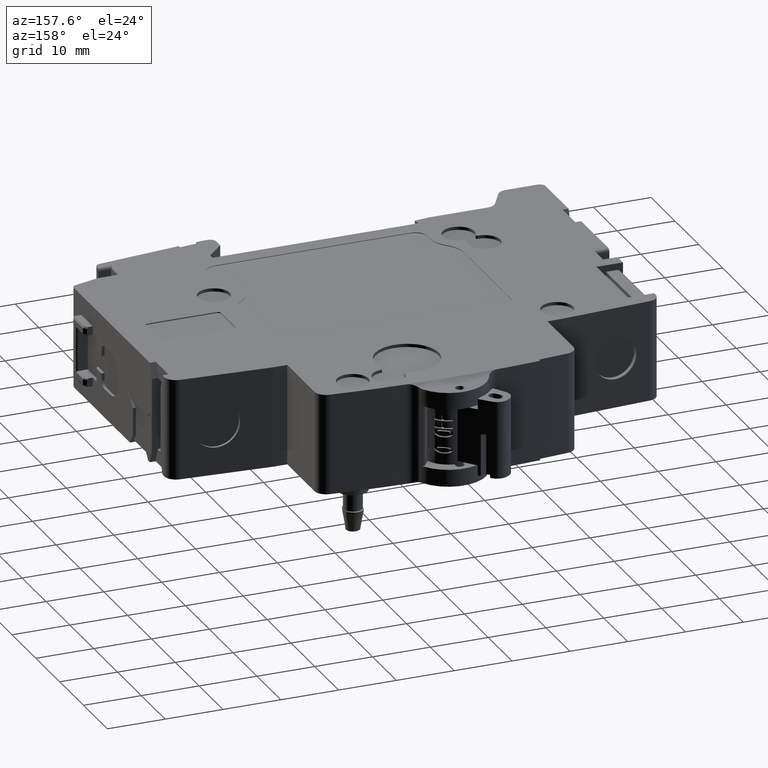
[diagram: clean part render]
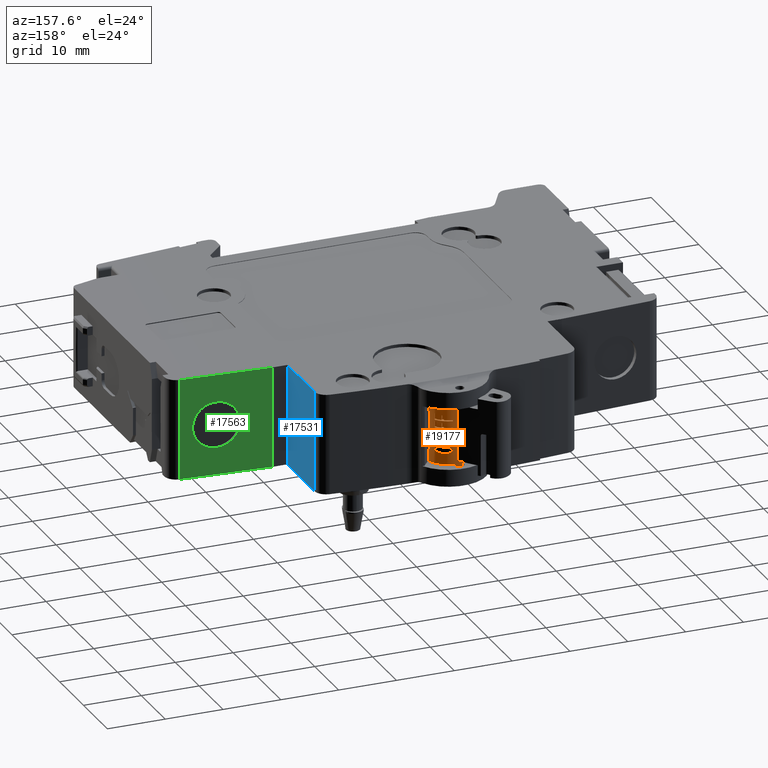
[diagram: same view with three faces highlighted in distinct colors, each labeled with its STEP entity id]
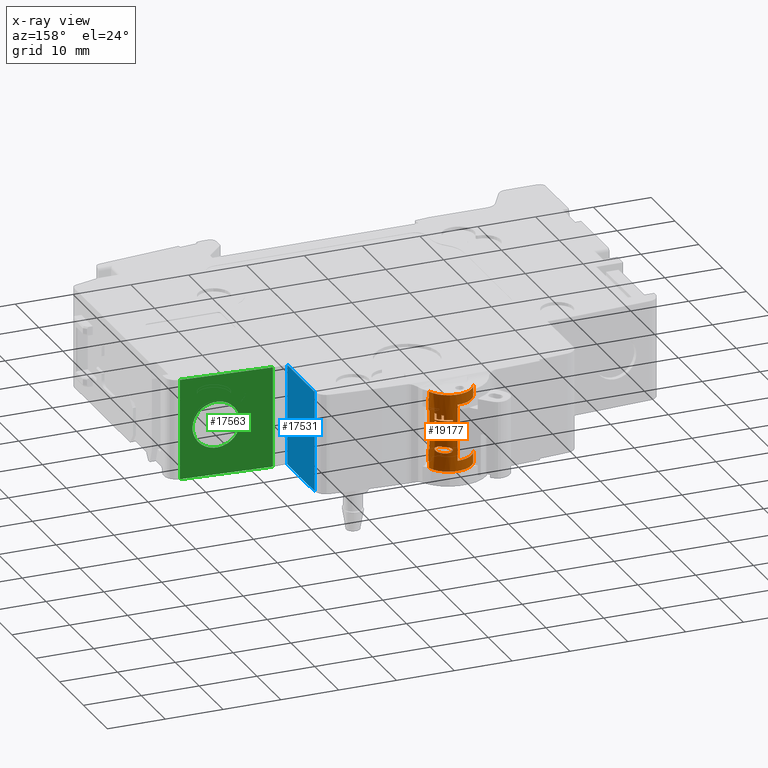
[diagram: x-ray of the same camera — body ghosted, the three highlighted faces saturated]
A machine part, auxiliary view with three faces highlighted in distinct colors.
The next image is the same camera in x-ray (body ghosted, the three faces saturated) — at least one of them is partly hidden behind the body in this view.
Their STEP definitions:

[orange] entity #19177 — the highlighted cylindrical surface (edge-blend (fillet) strip) has radius 4 mm, axis along (0, 0, 1).
#4276=DIRECTION('',(0.E0,0.E0,1.E0));
#4277=VECTOR('',#4276,1.8E0);
#4278=CARTESIAN_POINT('',(-3.889381237140E0,5.993419141089E1,-6.7E0));
#4279=LINE('',#4278,#4277);
#4292=DIRECTION('',(0.E0,0.E0,1.E0));
#4293=VECTOR('',#4292,1.8E0);
#4294=CARTESIAN_POINT('',(-3.889381237140E0,5.993419141089E1,4.9E0));
#4295=LINE('',#4294,#4293);
#4308=CARTESIAN_POINT('',(0.E0,5.9E1,-6.7E0));
#4309=DIRECTION('',(0.E0,0.E0,1.E0));
#4310=DIRECTION('',(9.561976733940E-1,2.927217268943E-1,0.E0));
#4311=AXIS2_PLACEMENT_3D('',#4308,#4309,#4310);
#4343=CARTESIAN_POINT('',(0.E0,5.9E1,-5.6E0));
#4344=DIRECTION('',(0.E0,0.E0,1.E0));
#4345=DIRECTION('',(9.683971462005E-1,2.494132459008E-1,0.E0));
#4346=AXIS2_PLACEMENT_3D('',#4343,#4344,#4345);
#4374=CARTESIAN_POINT('',(0.E0,5.9E1,-3.4E0));
#4375=DIRECTION('',(0.E0,0.E0,1.E0));
#4376=DIRECTION('',(9.683971462005E-1,2.494132459007E-1,0.E0));
#4377=AXIS2_PLACEMENT_3D('',#4374,#4375,#4376);
#4443=CARTESIAN_POINT('',(0.E0,5.9E1,3.4E0));
#4444=DIRECTION('',(0.E0,0.E0,1.E0));
#4445=DIRECTION('',(9.683971462005E-1,2.494132459007E-1,0.E0));
#4446=AXIS2_PLACEMENT_3D('',#4443,#4444,#4445);
#4474=CARTESIAN_POINT('',(0.E0,5.9E1,5.6E0));
#4475=DIRECTION('',(0.E0,0.E0,1.E0));
#4476=DIRECTION('',(9.683971462005E-1,2.494132459008E-1,0.E0));
#4477=AXIS2_PLACEMENT_3D('',#4474,#4475,#4476);
#4484=CARTESIAN_POINT('',(0.E0,5.9E1,6.7E0));
#4485=DIRECTION('',(0.E0,0.E0,1.E0));
#4486=DIRECTION('',(9.561976733940E-1,2.927217268943E-1,0.E0));
#4487=AXIS2_PLACEMENT_3D('',#4484,#4485,#4486);
#4493=DIRECTION('',(0.E0,-2.260817795600E-14,1.E0));
#4494=VECTOR('',#4493,2.2E0);
#4495=CARTESIAN_POINT('',(3.873588584802E0,5.999765298360E1,-5.6E0));
#4496=LINE('',#4495,#4494);
#4497=DIRECTION('',(0.E0,2.260817795600E-14,1.E0));
#4498=VECTOR('',#4497,2.2E0);
#4499=CARTESIAN_POINT('',(3.873588584802E0,5.999765298360E1,3.4E0));
#4500=LINE('',#4499,#4498);
#4501=CARTESIAN_POINT('',(0.E0,5.9E1,-3.5E0));
#4502=DIRECTION('',(0.E0,0.E0,1.E0));
#4503=DIRECTION('',(6.175591018674E-1,7.865244787677E-1,0.E0));
#4504=AXIS2_PLACEMENT_3D('',#4501,#4502,#4503);
#4506=CARTESIAN_POINT('',(1.994094201377E0,6.246750462379E1,-3.5E0));
#4507=CARTESIAN_POINT('',(1.901228010132E0,6.252091015704E1,-3.489746243922E0));
#4508=CARTESIAN_POINT('',(1.806365712629E0,6.257050711350E1,-3.479537906614E0));
#4509=CARTESIAN_POINT('',(1.709506824924E0,6.261629456980E1,-3.469374999087E0));
#4511=CARTESIAN_POINT('',(1.709506824924E0,6.261629456980E1,-3.469374999087E0));
#4512=CARTESIAN_POINT('',(1.650885749510E0,6.264400611999E1,-3.459123647016E0));
#4513=CARTESIAN_POINT('',(1.591619776300E0,6.267027963580E1,-3.448915304392E0));
#4514=CARTESIAN_POINT('',(1.531708501051E0,6.269511421580E1,-3.438749998175E0));
#4516=CARTESIAN_POINT('',(1.531708501051E0,6.269511421580E1,-3.438749998175E0));
#4517=CARTESIAN_POINT('',(1.450896686953E0,6.272861254235E1,-3.418182667007E0));
#4518=CARTESIAN_POINT('',(1.369041611938E0,6.275944012601E1,-3.397765878611E0));
#4519=CARTESIAN_POINT('',(1.286140757910E0,6.278759052048E1,-3.377499996349E0));
#4521=CARTESIAN_POINT('',(1.286140757910E0,6.278759052048E1,-3.377499996349E0));
#4522=CARTESIAN_POINT('',(1.223116347051E0,6.280899153073E1,-3.346686196194E0));
#4523=CARTESIAN_POINT('',(1.159515466693E0,6.282883495604E1,-3.316060706998E0));
#4524=CARTESIAN_POINT('',(1.095333590629E0,6.284710856686E1,-3.285625007302E0));
#4526=CARTESIAN_POINT('',(1.095333590629E0,6.284710856686E1,-3.285625007302E0));
#4527=CARTESIAN_POINT('',(1.030382196543E0,6.286560127183E1,-3.234290642264E0));
#4528=CARTESIAN_POINT('',(9.647938914735E-1,6.288249834051E1,
-3.183247055590E0));
#4529=CARTESIAN_POINT('',(8.985560748559E-1,6.289776820506E1,-3.1325E0));
#4531=CARTESIAN_POINT('',(8.985560748559E-1,6.289776820506E1,-3.1325E0));
#4532=CARTESIAN_POINT('',(8.763394768545E-1,6.290288981774E1,
-3.071224780264E0));
#4533=CARTESIAN_POINT('',(8.540152902321E-1,6.290783621578E1,
-3.009974630373E0));
#4534=CARTESIAN_POINT('',(8.315815852012E-1,6.291260425639E1,-2.94875E0));
#4536=CARTESIAN_POINT('',(8.985560748559E-1,6.289776820506E1,-2.765E0));
#4537=CARTESIAN_POINT('',(8.763394768545E-1,6.290288981774E1,
-2.826275219736E0));
#4538=CARTESIAN_POINT('',(8.540152902321E-1,6.290783621578E1,
-2.887525369627E0));
#4539=CARTESIAN_POINT('',(8.315815852012E-1,6.291260425639E1,-2.94875E0));
#4541=CARTESIAN_POINT('',(1.095333590629E0,6.284710856686E1,-2.611874970794E0));
#4542=CARTESIAN_POINT('',(1.030382196582E0,6.286560127182E1,-2.663209343144E0));
#4543=CARTESIAN_POINT('',(9.647938915131E-1,6.288249834050E1,
-2.714252937121E0));
#4544=CARTESIAN_POINT('',(8.985560748559E-1,6.289776820506E1,-2.765E0));
#4546=CARTESIAN_POINT('',(1.286140757910E0,6.278759052048E1,-2.519999970794E0));
#4547=CARTESIAN_POINT('',(1.223116347067E0,6.280899153073E1,-2.550813774614E0));
#4548=CARTESIAN_POINT('',(1.159515466710E0,6.282883495603E1,-2.581439267462E0));
#4549=CARTESIAN_POINT('',(1.095333590629E0,6.284710856686E1,-2.611874970794E0));
#4551=CARTESIAN_POINT('',(1.531708501051E0,6.269511421580E1,-2.458750029206E0));
#4552=CARTESIAN_POINT('',(1.450896686892E0,6.272861254238E1,-2.479317340162E0));
#4553=CARTESIAN_POINT('',(1.369041611875E0,6.275944012604E1,-2.499734108478E0));
#4554=CARTESIAN_POINT('',(1.286140757910E0,6.278759052048E1,-2.519999970794E0));
#4556=CARTESIAN_POINT('',(1.709506824924E0,6.261629456980E1,-2.428124970794E0));
#4557=CARTESIAN_POINT('',(1.650885749533E0,6.264400611998E1,-2.438376342108E0));
#4558=CARTESIAN_POINT('',(1.591619776323E0,6.267027963579E1,-2.448584703899E0));
#4559=CARTESIAN_POINT('',(1.531708501051E0,6.269511421580E1,-2.458750029206E0));
#4561=CARTESIAN_POINT('',(1.994094201377E0,6.246750462379E1,-2.3975E0));
#4562=CARTESIAN_POINT('',(1.901228010125E0,6.252091015704E1,-2.407753745994E0));
#4563=CARTESIAN_POINT('',(1.806365712621E0,6.257050711350E1,-2.417962073263E0));
#4564=CARTESIAN_POINT('',(1.709506824924E0,6.261629456980E1,-2.428124970794E0));
#4566=CARTESIAN_POINT('',(0.E0,5.9E1,-2.3975E0));
#4567=DIRECTION('',(0.E0,0.E0,-1.E0));
#4568=DIRECTION('',(4.985235503444E-1,8.668761559485E-1,0.E0));
#4569=AXIS2_PLACEMENT_3D('',#4566,#4567,#4568);
#4571=CARTESIAN_POINT('',(2.714691581624E0,6.193776268896E1,-2.428124970794E0));
#4572=CARTESIAN_POINT('',(2.635993670565E0,6.201048488584E1,-2.417962675626E0));
#4573=CARTESIAN_POINT('',(2.554508384396E0,6.207992969299E1,-2.407754348261E0));
#4574=CARTESIAN_POINT('',(2.470236407469E0,6.214609791507E1,-2.3975E0));
#4576=CARTESIAN_POINT('',(2.854314487758E0,6.180230062716E1,-2.458750029206E0));
#4577=CARTESIAN_POINT('',(2.808867072553E0,6.184859159765E1,-2.448585080237E0));
#4578=CARTESIAN_POINT('',(2.762325873568E0,6.189374537884E1,-2.438376718293E0));
#4579=CARTESIAN_POINT('',(2.714691581624E0,6.193776268896E1,-2.428124970794E0));
#4581=CARTESIAN_POINT('',(3.031967063108E0,6.160905648238E1,-2.519999970794E0));
#4582=CARTESIAN_POINT('',(2.974841149502E0,6.167544212396E1,-2.499735158942E0));
#4583=CARTESIAN_POINT('',(2.915621933759E0,6.173985524581E1,-2.479318389020E0));
#4584=CARTESIAN_POINT('',(2.854314487758E0,6.180230062716E1,-2.458750029206E0));
#4586=CARTESIAN_POINT('',(3.158567202922E0,6.145427244303E1,-2.611874970794E0));
#4587=CARTESIAN_POINT('',(3.117603524438E0,6.150699133809E1,-2.581440417695E0));
#4588=CARTESIAN_POINT('',(3.075400242255E0,6.155858307580E1,-2.550814919295E0));
#4589=CARTESIAN_POINT('',(3.031967063108E0,6.160905648238E1,-2.519999970794E0));
#4591=CARTESIAN_POINT('',(3.279188102994E0,6.129061681326E1,-2.765E0));
#4592=CARTESIAN_POINT('',(3.240240150478E0,6.134637370013E1,-2.714254643186E0));
#4593=CARTESIAN_POINT('',(3.200024950879E0,6.140091769695E1,-2.663211029099E0));
#4594=CARTESIAN_POINT('',(3.158567202922E0,6.145427244303E1,-2.611874970794E0));
#4596=CARTESIAN_POINT('',(3.318010721167E0,6.123401093422E1,-2.94875E0));
#4597=CARTESIAN_POINT('',(3.305193581566E0,6.125304728089E1,-2.887525527648E0));
#4598=CARTESIAN_POINT('',(3.292251974157E0,6.127191491137E1,-2.826275376074E0));
#4599=CARTESIAN_POINT('',(3.279188102994E0,6.129061681326E1,-2.765E0));
#4601=CARTESIAN_POINT('',(3.318010721167E0,6.123401093422E1,-2.94875E0));
#4602=CARTESIAN_POINT('',(3.305193581566E0,6.125304728089E1,-3.009974472352E0));
#4603=CARTESIAN_POINT('',(3.292251974157E0,6.127191491137E1,-3.071224623926E0));
#4604=CARTESIAN_POINT('',(3.279188102994E0,6.129061681326E1,-3.1325E0));
#4606=CARTESIAN_POINT('',(3.279188102994E0,6.129061681326E1,-3.1325E0));
#4607=CARTESIAN_POINT('',(3.240240150502E0,6.134637370010E1,-3.183245349525E0));
#4608=CARTESIAN_POINT('',(3.200024950904E0,6.140091769692E1,-3.234288956309E0));
#4609=CARTESIAN_POINT('',(3.158567202922E0,6.145427244303E1,-3.285625007302E0));
#4611=CARTESIAN_POINT('',(3.158567202922E0,6.145427244303E1,-3.285625007302E0));
#4612=CARTESIAN_POINT('',(3.117603524449E0,6.150699133808E1,-3.316059556765E0));
#4613=CARTESIAN_POINT('',(3.075400242266E0,6.155858307578E1,-3.346685051514E0));
#4614=CARTESIAN_POINT('',(3.031967063108E0,6.160905648238E1,-3.377499996349E0));
#4616=CARTESIAN_POINT('',(3.031967063108E0,6.160905648238E1,-3.377499996349E0));
#4617=CARTESIAN_POINT('',(2.974841149459E0,6.167544212401E1,-3.397764828146E0));
#4618=CARTESIAN_POINT('',(2.915621933713E0,6.173985524585E1,-3.418181618148E0));
#4619=CARTESIAN_POINT('',(2.854314487758E0,6.180230062716E1,-3.438749998175E0));
#4621=CARTESIAN_POINT('',(2.854314487758E0,6.180230062716E1,-3.438749998175E0));
#4622=CARTESIAN_POINT('',(2.808867072570E0,6.184859159764E1,-3.448914928055E0));
#4623=CARTESIAN_POINT('',(2.762325873586E0,6.189374537883E1,-3.459123270832E0));
#4624=CARTESIAN_POINT('',(2.714691581624E0,6.193776268896E1,-3.469374999087E0));
#4626=CARTESIAN_POINT('',(2.714691581624E0,6.193776268896E1,-3.469374999087E0));
#4627=CARTESIAN_POINT('',(2.635993670558E0,6.201048488585E1,-3.479537304250E0));
#4628=CARTESIAN_POINT('',(2.554508384390E0,6.207992969299E1,-3.489745641655E0));
#4629=CARTESIAN_POINT('',(2.470236407469E0,6.214609791507E1,-3.5E0));
#4631=CARTESIAN_POINT('',(3.318010721167E0,6.123401093422E1,-1.925E-1));
#4632=CARTESIAN_POINT('',(3.305195538396E0,6.125304437456E1,
-2.435126431131E-1));
#4633=CARTESIAN_POINT('',(3.292253957418E0,6.127191207219E1,
-2.945545124865E-1));
#4634=CARTESIAN_POINT('',(3.279188102994E0,6.129061681326E1,
-3.456251168251E-1));
#4636=CARTESIAN_POINT('',(3.279188102994E0,6.129061681326E1,
-3.456251168251E-1));
#4637=CARTESIAN_POINT('',(3.253161150991E0,6.132787632819E1,
-3.863177448906E-1));
#4638=CARTESIAN_POINT('',(3.226579882373E0,6.136457713449E1,
-4.271518215561E-1));
#4639=CARTESIAN_POINT('',(3.199453493994E0,6.140072850189E1,-4.68125E-1));
#4641=CARTESIAN_POINT('',(3.199453493994E0,6.140072850189E1,-4.68125E-1));
#4642=CARTESIAN_POINT('',(3.145849949661E0,6.147216600391E1,
-5.086079182989E-1));
#4643=CARTESIAN_POINT('',(3.090013155628E0,6.154160150704E1,
-5.494425283807E-1));
#4644=CARTESIAN_POINT('',(3.031967063108E0,6.160905648238E1,
-5.906250584126E-1));
#4646=CARTESIAN_POINT('',(3.031967063108E0,6.160905648238E1,
-5.906250584126E-1));
#4647=CARTESIAN_POINT('',(2.974841149502E0,6.167544212396E1,
-6.108898702639E-1));
#4648=CARTESIAN_POINT('',(2.915621933759E0,6.173985524581E1,
-6.313066401866E-1));
#4649=CARTESIAN_POINT('',(2.854314487758E0,6.180230062716E1,-6.51875E-1));
#4651=CARTESIAN_POINT('',(2.854314487758E0,6.180230062716E1,-6.51875E-1));
#4652=CARTESIAN_POINT('',(2.778741082843E0,6.187927675971E1,
-6.620168321091E-1));
#4653=CARTESIAN_POINT('',(2.700186756956E0,6.195307050813E1,
-6.722251926770E-1));
#4654=CARTESIAN_POINT('',(2.618652553700E0,6.202368298653E1,
-6.825000584126E-1));
#4656=CARTESIAN_POINT('',(0.E0,5.9E1,-6.825000584126E-1));
#4657=DIRECTION('',(0.E0,0.E0,1.E0));
#4658=DIRECTION('',(6.546631384249E-1,7.559207466313E-1,0.E0));
#4659=AXIS2_PLACEMENT_3D('',#4656,#4657,#4658);
#4661=CARTESIAN_POINT('',(1.825083915600E0,6.255936352471E1,
-6.825000584126E-1));
#4662=CARTESIAN_POINT('',(1.729127606891E0,6.260856566841E1,
-6.722258193656E-1));
#4663=CARTESIAN_POINT('',(1.631336014372E0,6.265381635593E1,
-6.620174589397E-1));
#4664=CARTESIAN_POINT('',(1.531708501051E0,6.269511421580E1,-6.51875E-1));
#4666=CARTESIAN_POINT('',(1.531708501051E0,6.269511421580E1,-6.51875E-1));
#4667=CARTESIAN_POINT('',(1.450896686892E0,6.272861254238E1,
-6.313076890446E-1));
#4668=CARTESIAN_POINT('',(1.369041611875E0,6.275944012604E1,
-6.108909207285E-1));
#4669=CARTESIAN_POINT('',(1.286140757910E0,6.278759052048E1,
-5.906250584126E-1));
#4671=CARTESIAN_POINT('',(1.286140757910E0,6.278759052048E1,
-5.906250584126E-1));
#4672=CARTESIAN_POINT('',(1.201913149884E0,6.281619143683E1,
-5.494445972453E-1));
#4673=CARTESIAN_POINT('',(1.116676300220E0,6.284200509344E1,
-5.086100008841E-1));
#4674=CARTESIAN_POINT('',(1.030419322732E0,6.286500142553E1,-4.68125E-1));
#4676=CARTESIAN_POINT('',(1.030419322732E0,6.286500142553E1,-4.68125E-1));
#4677=CARTESIAN_POINT('',(9.867715759638E-1,6.287663802710E1,
-4.271526285398E-1));
#4678=CARTESIAN_POINT('',(9.428188669584E-1,6.288756426304E1,
-3.863185600304E-1));
#4679=CARTESIAN_POINT('',(8.985560748559E-1,6.289776820506E1,
-3.456251168251E-1));
#4681=CARTESIAN_POINT('',(8.985560748559E-1,6.289776820506E1,
-3.456251168251E-1));
#4682=CARTESIAN_POINT('',(8.763361241938E-1,6.290289059064E1,
-2.945546889843E-1));
#4683=CARTESIAN_POINT('',(8.540118857180E-1,6.290783693938E1,
-2.435128214126E-1));
#4684=CARTESIAN_POINT('',(8.315815852012E-1,6.291260425639E1,-1.925E-1));
#4686=DIRECTION('',(0.E0,0.E0,1.E0));
#4687=VECTOR('',#4686,2.450001168251E-1);
#4688=CARTESIAN_POINT('',(8.315815852012E-1,6.291260425639E1,-1.925E-1));
#4689=LINE('',#4688,#4687);
#4690=CARTESIAN_POINT('',(8.985560748559E-1,6.289776820506E1,
2.056248831749E-1));
#4691=CARTESIAN_POINT('',(8.763361241462E-1,6.290289059065E1,
1.545545721153E-1));
#4692=CARTESIAN_POINT('',(8.540118856696E-1,6.290783693939E1,
1.035128213686E-1));
#4693=CARTESIAN_POINT('',(8.315815852012E-1,6.291260425639E1,
5.250011682510E-2));
#4695=CARTESIAN_POINT('',(1.030419322732E0,6.286500142553E1,3.281251168251E-1));
#4696=CARTESIAN_POINT('',(9.867715763452E-1,6.287663802700E1,
2.871526284998E-1));
#4697=CARTESIAN_POINT('',(9.428188673473E-1,6.288756426296E1,
2.463184431627E-1));
#4698=CARTESIAN_POINT('',(8.985560748559E-1,6.289776820506E1,
2.056248831749E-1));
#4700=CARTESIAN_POINT('',(1.286140757910E0,6.278759052048E1,4.50625E-1));
#4701=CARTESIAN_POINT('',(1.201913149528E0,6.281619143695E1,4.094445975681E-1));
#4702=CARTESIAN_POINT('',(1.116676299854E0,6.284200509353E1,3.686100596235E-1));
#4703=CARTESIAN_POINT('',(1.030419322732E0,6.286500142553E1,3.281251168251E-1));
#4705=CARTESIAN_POINT('',(1.531708501051E0,6.269511421580E1,5.118751168251E-1));
#4706=CARTESIAN_POINT('',(1.450896687068E0,6.272861254230E1,4.913077470709E-1));
#4707=CARTESIAN_POINT('',(1.369041612056E0,6.275944012597E1,4.708909203414E-1));
#4708=CARTESIAN_POINT('',(1.286140757910E0,6.278759052048E1,4.50625E-1));
#4710=CARTESIAN_POINT('',(1.825083915600E0,6.255936352471E1,5.425E-1));
#4711=CARTESIAN_POINT('',(1.729127606828E0,6.260856566844E1,5.322258197359E-1));
#4712=CARTESIAN_POINT('',(1.631336014306E0,6.265381635596E1,5.220175177227E-1));
#4713=CARTESIAN_POINT('',(1.531708501051E0,6.269511421580E1,5.118751168251E-1));
#4715=CARTESIAN_POINT('',(0.E0,5.9E1,5.425E-1));
#4716=DIRECTION('',(0.E0,0.E0,-1.E0));
#4717=DIRECTION('',(4.562709788999E-1,8.898408811769E-1,0.E0));
#4718=AXIS2_PLACEMENT_3D('',#4715,#4716,#4717);
#4720=CARTESIAN_POINT('',(2.854314487758E0,6.180230062716E1,5.118751168251E-1));
#4721=CARTESIAN_POINT('',(2.778741082893E0,6.187927675966E1,5.220168908956E-1));
#4722=CARTESIAN_POINT('',(2.700186757010E0,6.195307050808E1,5.322251930508E-1));
#4723=CARTESIAN_POINT('',(2.618652553700E0,6.202368298653E1,5.425E-1));
#4725=CARTESIAN_POINT('',(3.031967063108E0,6.160905648238E1,4.50625E-1));
#4726=CARTESIAN_POINT('',(2.974841149377E0,6.167544212410E1,4.708898698740E-1));
#4727=CARTESIAN_POINT('',(2.915621933624E0,6.173985524594E1,4.913066982102E-1));
#4728=CARTESIAN_POINT('',(2.854314487758E0,6.180230062716E1,5.118751168251E-1));
#4730=CARTESIAN_POINT('',(3.199453493994E0,6.140072850189E1,3.281251168251E-1));
#4731=CARTESIAN_POINT('',(3.145849949889E0,6.147216600360E1,3.686079770404E-1));
#4732=CARTESIAN_POINT('',(3.090013155875E0,6.154160150676E1,4.094425287055E-1));
#4733=CARTESIAN_POINT('',(3.031967063108E0,6.160905648238E1,4.50625E-1));
#4735=CARTESIAN_POINT('',(3.279188102994E0,6.129061681326E1,2.056248831749E-1));
#4736=CARTESIAN_POINT('',(3.253161150761E0,6.132787632852E1,2.463176280224E-1));
#4737=CARTESIAN_POINT('',(3.226579882135E0,6.136457713481E1,2.871518215158E-1));
#4738=CARTESIAN_POINT('',(3.199453493994E0,6.140072850189E1,3.281251168251E-1));
#4740=CARTESIAN_POINT('',(3.318010721167E0,6.123401093422E1,5.250011682510E-2));
#4741=CARTESIAN_POINT('',(3.305195538424E0,6.125304437452E1,1.035126430689E-1));
#4742=CARTESIAN_POINT('',(3.292253957446E0,6.127191207215E1,1.545543956174E-1));
#4743=CARTESIAN_POINT('',(3.279188102994E0,6.129061681326E1,2.056248831749E-1));
#4745=DIRECTION('',(0.E0,-2.900173048764E-14,1.E0));
#4746=VECTOR('',#4745,2.450001168251E-1);
#4747=CARTESIAN_POINT('',(3.318010721167E0,6.123401093422E1,-1.925E-1));
#4748=LINE('',#4747,#4746);
#4749=CARTESIAN_POINT('',(0.E0,5.9E1,9.712501168251E-1));
#4750=DIRECTION('',(0.E0,0.E0,1.E0));
#4751=DIRECTION('',(5.394847264689E-1,8.419953859177E-1,0.E0));
#4752=AXIS2_PLACEMENT_3D('',#4749,#4750,#4751);
#4754=DIRECTION('',(0.E0,0.E0,1.E0));
#4755=VECTOR('',#4754,7.962497663498E-1);
#4756=CARTESIAN_POINT('',(2.157938905876E0,6.236798154367E1,9.712501168251E-1));
#4757=LINE('',#4756,#4755);
#4758=CARTESIAN_POINT('',(0.E0,5.9E1,1.767499883175E0));
#4759=DIRECTION('',(0.E0,0.E0,-1.E0));
#4760=DIRECTION('',(5.394847264689E-1,8.419953859177E-1,0.E0));
#4761=AXIS2_PLACEMENT_3D('',#4758,#4759,#4760);
#4763=DIRECTION('',(0.E0,0.E0,1.E0));
#4764=VECTOR('',#4763,7.962497663498E-1);
#4765=CARTESIAN_POINT('',(2.470236407469E0,6.214609791507E1,9.712501168251E-1));
#4766=LINE('',#4765,#4764);
#4767=CARTESIAN_POINT('',(0.E0,5.9E1,9.712501168251E-1));
#4768=DIRECTION('',(0.E0,0.E0,1.E0));
#4769=DIRECTION('',(7.687034582965E-1,6.396053417562E-1,0.E0));
#4770=AXIS2_PLACEMENT_3D('',#4767,#4768,#4769);
#4772=DIRECTION('',(0.E0,0.E0,1.E0));
#4773=VECTOR('',#4772,9.1875E-1);
#4774=CARTESIAN_POINT('',(3.074813833186E0,6.155842136702E1,9.712501168251E-1));
#4775=LINE('',#4774,#4773);
#4776=CARTESIAN_POINT('',(0.E0,5.9E1,1.890000116825E0));
#4777=DIRECTION('',(0.E0,0.E0,1.E0));
#4778=DIRECTION('',(8.295026802917E-1,5.585027335554E-1,0.E0));
#4779=AXIS2_PLACEMENT_3D('',#4776,#4777,#4778);
#4781=DIRECTION('',(0.E0,0.E0,1.E0));
#4782=VECTOR('',#4781,1.1025E0);
#4783=CARTESIAN_POINT('',(3.318010721167E0,6.123401093422E1,7.875001168251E-1));
#4784=LINE('',#4783,#4782);
#4785=CARTESIAN_POINT('',(0.E0,5.9E1,7.875001168251E-1));
#4786=DIRECTION('',(0.E0,0.E0,1.E0));
#4787=DIRECTION('',(8.295026802917E-1,5.585027335554E-1,0.E0));
#4788=AXIS2_PLACEMENT_3D('',#4785,#4786,#4787);
#4790=DIRECTION('',(0.E0,0.E0,1.E0));
#4791=VECTOR('',#4790,1.8375E-1);
#4792=CARTESIAN_POINT('',(8.315815852012E-1,6.291260425639E1,
7.875001168251E-1));
#4793=LINE('',#4792,#4791);
#4794=CARTESIAN_POINT('',(0.E0,5.9E1,2.318749883175E0));
#4795=DIRECTION('',(0.E0,0.E0,1.E0));
#4796=DIRECTION('',(5.394847264689E-1,8.419953859177E-1,0.E0));
#4797=AXIS2_PLACEMENT_3D('',#4794,#4795,#4796);
#4799=DIRECTION('',(0.E0,0.E0,1.E0));
#4800=VECTOR('',#4799,7.962501168251E-1);
#4801=CARTESIAN_POINT('',(2.157938905876E0,6.236798154367E1,2.318749883175E0));
#4802=LINE('',#4801,#4800);
#4803=CARTESIAN_POINT('',(0.E0,5.9E1,3.115E0));
#4804=DIRECTION('',(0.E0,0.E0,-1.E0));
#4805=DIRECTION('',(5.394847264689E-1,8.419953859177E-1,0.E0));
#4806=AXIS2_PLACEMENT_3D('',#4803,#4804,#4805);
#4808=DIRECTION('',(0.E0,0.E0,1.E0));
#4809=VECTOR('',#4808,7.962501168251E-1);
#4810=CARTESIAN_POINT('',(2.470236407469E0,6.214609791507E1,2.318749883175E0));
#4811=LINE('',#4810,#4809);
#4812=CARTESIAN_POINT('',(0.E0,5.9E1,2.318749883175E0));
#4813=DIRECTION('',(0.E0,0.E0,1.E0));
#4814=DIRECTION('',(7.687034582965E-1,6.396053417562E-1,0.E0));
#4815=AXIS2_PLACEMENT_3D('',#4812,#4813,#4814);
#4817=DIRECTION('',(0.E0,0.E0,1.E0));
#4818=VECTOR('',#4817,9.187503504753E-1);
#4819=CARTESIAN_POINT('',(3.074813833186E0,6.155842136702E1,2.318749883175E0));
#4820=LINE('',#4819,#4818);
#4821=CARTESIAN_POINT('',(0.E0,5.9E1,3.237500233650E0));
#4822=DIRECTION('',(0.E0,0.E0,1.E0));
#4823=DIRECTION('',(8.295026802917E-1,5.585027335554E-1,0.E0));
#4824=AXIS2_PLACEMENT_3D('',#4821,#4822,#4823);
#4826=DIRECTION('',(0.E0,0.E0,1.E0));
#4827=VECTOR('',#4826,1.102500350475E0);
#4828=CARTESIAN_POINT('',(3.318010721167E0,6.123401093422E1,2.134999883175E0));
#4829=LINE('',#4828,#4827);
#4830=CARTESIAN_POINT('',(0.E0,5.9E1,2.134999883175E0));
#4831=DIRECTION('',(0.E0,0.E0,1.E0));
#4832=DIRECTION('',(8.295026802917E-1,5.585027335554E-1,0.E0));
#4833=AXIS2_PLACEMENT_3D('',#4830,#4831,#4832);
#4835=DIRECTION('',(0.E0,0.E0,1.E0));
#4836=VECTOR('',#4835,1.8375E-1);
#4837=CARTESIAN_POINT('',(8.315815852012E-1,6.291260425639E1,2.134999883175E0));
#4838=LINE('',#4837,#4836);
#4843=DIRECTION('',(0.E0,0.E0,1.E0));
#4844=VECTOR('',#4843,1.1E0);
#4845=CARTESIAN_POINT('',(3.824790693576E0,6.017088690758E1,-6.7E0));
#4846=LINE('',#4845,#4844);
#4855=DIRECTION('',(0.E0,0.E0,1.E0));
#4856=VECTOR('',#4855,6.8E0);
#4857=CARTESIAN_POINT('',(3.807008119610E0,6.022747267881E1,-3.4E0));
#4858=LINE('',#4857,#4856);
#4863=DIRECTION('',(0.E0,0.E0,1.E0));
#4864=VECTOR('',#4863,1.1E0);
#4865=CARTESIAN_POINT('',(3.824790693576E0,6.017088690758E1,5.6E0));
#4866=LINE('',#4865,#4864);
#4884=CARTESIAN_POINT('',(0.E0,5.9E1,4.9E0));
#4885=DIRECTION('',(0.E0,0.E0,-1.E0));
#4886=DIRECTION('',(-9.723453092850E-1,2.335478527228E-1,0.E0));
#4887=AXIS2_PLACEMENT_3D('',#4884,#4885,#4886);
#4901=CARTESIAN_POINT('',(0.E0,5.9E1,-4.9E0));
#4902=DIRECTION('',(0.E0,0.E0,-1.E0));
#4903=DIRECTION('',(-9.723453092850E-1,2.335478527228E-1,0.E0));
#4904=AXIS2_PLACEMENT_3D('',#4901,#4902,#4903);
#4923=DIRECTION('',(0.E0,0.E0,1.E0));
#4924=VECTOR('',#4923,9.8E0);
#4925=CARTESIAN_POINT('',(4.616050093330E-2,6.299973364215E1,-4.9E0));
#4926=LINE('',#4925,#4924);
#12609=CARTESIAN_POINT('',(3.873588584802E0,5.999765298360E1,3.4E0));
#12610=CARTESIAN_POINT('',(3.807008119610E0,6.022747267881E1,3.4E0));
#12611=VERTEX_POINT('',#12609);
#12612=VERTEX_POINT('',#12610);
#12613=CARTESIAN_POINT('',(3.873588584802E0,5.999765298360E1,-3.4E0));
#12614=CARTESIAN_POINT('',(3.807008119610E0,6.022747267881E1,-3.4E0));
#12615=VERTEX_POINT('',#12613);
#12616=VERTEX_POINT('',#12614);
#12621=CARTESIAN_POINT('',(4.616050093330E-2,6.299973364215E1,4.9E0));
#12623=VERTEX_POINT('',#12621);
#12635=CARTESIAN_POINT('',(4.616050093330E-2,6.299973364215E1,-4.9E0));
#12637=VERTEX_POINT('',#12635);
#12645=CARTESIAN_POINT('',(3.824790693576E0,6.017088690758E1,6.7E0));
#12647=VERTEX_POINT('',#12645);
#12649=CARTESIAN_POINT('',(3.873588584802E0,5.999765298360E1,5.6E0));
#12650=CARTESIAN_POINT('',(3.824790693576E0,6.017088690758E1,5.6E0));
#12651=VERTEX_POINT('',#12649);
#12652=VERTEX_POINT('',#12650);
#12655=CARTESIAN_POINT('',(3.824790693576E0,6.017088690758E1,-6.7E0));
#12657=VERTEX_POINT('',#12655);
#12659=CARTESIAN_POINT('',(3.873588584802E0,5.999765298360E1,-5.6E0));
#12660=CARTESIAN_POINT('',(3.824790693576E0,6.017088690758E1,-5.6E0));
#12661=VERTEX_POINT('',#12659);
#12662=VERTEX_POINT('',#12660);
#13029=CARTESIAN_POINT('',(2.470236407469E0,6.214609791507E1,-3.5E0));
#13030=CARTESIAN_POINT('',(1.994094201377E0,6.246750462379E1,-3.5E0));
#13031=VERTEX_POINT('',#13029);
#13032=VERTEX_POINT('',#13030);
#13033=VERTEX_POINT('',#4509);
#13034=VERTEX_POINT('',#4514);
#13035=VERTEX_POINT('',#4519);
#13036=VERTEX_POINT('',#4524);
#13037=VERTEX_POINT('',#4529);
#13038=VERTEX_POINT('',#4534);
#13039=VERTEX_POINT('',#4536);
#13040=VERTEX_POINT('',#4541);
#13041=VERTEX_POINT('',#4546);
#13042=VERTEX_POINT('',#4551);
#13043=VERTEX_POINT('',#4556);
#13044=VERTEX_POINT('',#4561);
#13045=CARTESIAN_POINT('',(2.470236407469E0,6.214609791507E1,-2.3975E0));
#13046=VERTEX_POINT('',#13045);
#13047=VERTEX_POINT('',#4571);
#13048=VERTEX_POINT('',#4576);
#13049=VERTEX_POINT('',#4581);
#13050=VERTEX_POINT('',#4586);
#13051=VERTEX_POINT('',#4591);
#13052=VERTEX_POINT('',#4596);
#13053=VERTEX_POINT('',#4604);
#13054=VERTEX_POINT('',#4609);
#13055=VERTEX_POINT('',#4614);
#13056=VERTEX_POINT('',#4619);
#13057=VERTEX_POINT('',#4624);
#13077=VERTEX_POINT('',#4631);
#13078=VERTEX_POINT('',#4634);
#13079=VERTEX_POINT('',#4639);
#13080=VERTEX_POINT('',#4644);
#13081=VERTEX_POINT('',#4649);
#13082=VERTEX_POINT('',#4654);
#13083=CARTESIAN_POINT('',(1.825083915600E0,6.255936352471E1,
-6.825000584126E-1));
#13084=VERTEX_POINT('',#13083);
#13085=VERTEX_POINT('',#4664);
#13086=VERTEX_POINT('',#4669);
#13087=VERTEX_POINT('',#4674);
#13088=VERTEX_POINT('',#4679);
#13089=VERTEX_POINT('',#4684);
#13090=CARTESIAN_POINT('',(8.315815852012E-1,6.291260425639E1,
5.250011682510E-2));
#13091=VERTEX_POINT('',#13090);
#13092=VERTEX_POINT('',#4690);
#13093=VERTEX_POINT('',#4695);
#13094=VERTEX_POINT('',#4700);
#13095=VERTEX_POINT('',#4705);
#13096=VERTEX_POINT('',#4710);
#13097=CARTESIAN_POINT('',(2.618652553700E0,6.202368298653E1,5.425E-1));
#13098=VERTEX_POINT('',#13097);
#13099=VERTEX_POINT('',#4720);
#13100=VERTEX_POINT('',#4725);
#13101=VERTEX_POINT('',#4730);
#13102=VERTEX_POINT('',#4735);
#13103=VERTEX_POINT('',#4740);
#13129=CARTESIAN_POINT('',(2.157938905876E0,6.236798154367E1,
9.712501168251E-1));
#13130=CARTESIAN_POINT('',(8.315815852012E-1,6.291260425639E1,
9.712501168251E-1));
#13131=VERTEX_POINT('',#13129);
#13132=VERTEX_POINT('',#13130);
#13133=CARTESIAN_POINT('',(2.157938905876E0,6.236798154367E1,1.767499883175E0));
#13134=VERTEX_POINT('',#13133);
#13135=CARTESIAN_POINT('',(2.470236407469E0,6.214609791507E1,1.767499883175E0));
#13136=VERTEX_POINT('',#13135);
#13137=CARTESIAN_POINT('',(2.470236407469E0,6.214609791507E1,
9.712501168251E-1));
#13138=VERTEX_POINT('',#13137);
#13139=CARTESIAN_POINT('',(3.074813833186E0,6.155842136702E1,
9.712501168251E-1));
#13140=VERTEX_POINT('',#13139);
#13141=CARTESIAN_POINT('',(3.074813833186E0,6.155842136702E1,1.890000116825E0));
#13142=VERTEX_POINT('',#13141);
#13143=CARTESIAN_POINT('',(3.318010721167E0,6.123401093422E1,1.890000116825E0));
#13144=VERTEX_POINT('',#13143);
#13145=CARTESIAN_POINT('',(3.318010721167E0,6.123401093422E1,
7.875001168251E-1));
#13146=VERTEX_POINT('',#13145);
#13147=CARTESIAN_POINT('',(8.315815852012E-1,6.291260425639E1,
7.875001168251E-1));
#13148=VERTEX_POINT('',#13147);
#13149=CARTESIAN_POINT('',(2.157938905876E0,6.236798154367E1,2.318749883175E0));
#13150=CARTESIAN_POINT('',(8.315815852012E-1,6.291260425639E1,
2.318749883175E0));
#13151=VERTEX_POINT('',#13149);
#13152=VERTEX_POINT('',#13150);
#13153=CARTESIAN_POINT('',(2.157938905876E0,6.236798154367E1,3.115E0));
#13154=VERTEX_POINT('',#13153);
#13155=CARTESIAN_POINT('',(2.470236407469E0,6.214609791507E1,3.115E0));
#13156=VERTEX_POINT('',#13155);
#13157=CARTESIAN_POINT('',(2.470236407469E0,6.214609791507E1,2.318749883175E0));
#13158=VERTEX_POINT('',#13157);
#13159=CARTESIAN_POINT('',(3.074813833186E0,6.155842136702E1,2.318749883175E0));
#13160=VERTEX_POINT('',#13159);
#13161=CARTESIAN_POINT('',(3.074813833186E0,6.155842136702E1,3.237500233650E0));
#13162=VERTEX_POINT('',#13161);
#13163=CARTESIAN_POINT('',(3.318010721167E0,6.123401093422E1,3.237500233650E0));
#13164=VERTEX_POINT('',#13163);
#13165=CARTESIAN_POINT('',(3.318010721167E0,6.123401093422E1,2.134999883175E0));
#13166=VERTEX_POINT('',#13165);
#13167=CARTESIAN_POINT('',(8.315815852012E-1,6.291260425639E1,
2.134999883175E0));
#13168=VERTEX_POINT('',#13167);
#13245=CARTESIAN_POINT('',(-3.889381237140E0,5.993419141089E1,-6.7E0));
#13246=VERTEX_POINT('',#13245);
#13247=CARTESIAN_POINT('',(-3.889381237140E0,5.993419141089E1,6.7E0));
#13248=VERTEX_POINT('',#13247);
#13249=CARTESIAN_POINT('',(-3.889381237140E0,5.993419141089E1,-4.9E0));
#13250=VERTEX_POINT('',#13249);
#13251=CARTESIAN_POINT('',(-3.889381237140E0,5.993419141089E1,4.9E0));
#13252=VERTEX_POINT('',#13251);
#19000=CARTESIAN_POINT('',(0.E0,5.9E1,-6.7E0));
#19001=DIRECTION('',(0.E0,0.E0,1.E0));
#19002=DIRECTION('',(7.877853466883E-1,6.159498742132E-1,0.E0));
#19003=AXIS2_PLACEMENT_3D('',#19000,#19001,#19002);
#19004=CYLINDRICAL_SURFACE('',#19003,4.E0);
#19005=ORIENTED_EDGE('',*,*,#18509,.F.);
#19006=ORIENTED_EDGE('',*,*,#18535,.F.);
#19008=ORIENTED_EDGE('',*,*,#19007,.T.);
#19009=ORIENTED_EDGE('',*,*,#18677,.F.);
#19010=ORIENTED_EDGE('',*,*,#18700,.T.);
#19011=ORIENTED_EDGE('',*,*,#18723,.T.);
#19013=ORIENTED_EDGE('',*,*,#19012,.T.);
#19014=ORIENTED_EDGE('',*,*,#18895,.F.);
#19015=ORIENTED_EDGE('',*,*,#18918,.T.);
#19016=ORIENTED_EDGE('',*,*,#18941,.T.);
#19018=ORIENTED_EDGE('',*,*,#19017,.T.);
#19019=ORIENTED_EDGE('',*,*,#18985,.T.);
#19020=ORIENTED_EDGE('',*,*,#18517,.F.);
#19022=ORIENTED_EDGE('',*,*,#19021,.T.);
#19024=ORIENTED_EDGE('',*,*,#19023,.F.);
#19026=ORIENTED_EDGE('',*,*,#19025,.F.);
#19027=EDGE_LOOP('',(#19005,#19006,#19008,#19009,#19010,#19011,#19013,#19014,
#19015,#19016,#19018,#19019,#19020,#19022,#19024,#19026));
#19028=FACE_OUTER_BOUND('',#19027,.F.);
#19030=ORIENTED_EDGE('',*,*,#19029,.T.);
#19032=ORIENTED_EDGE('',*,*,#19031,.T.);
#19034=ORIENTED_EDGE('',*,*,#19033,.T.);
#19036=ORIENTED_EDGE('',*,*,#19035,.T.);
#19038=ORIENTED_EDGE('',*,*,#19037,.T.);
#19040=ORIENTED_EDGE('',*,*,#19039,.T.);
#19042=ORIENTED_EDGE('',*,*,#19041,.T.);
#19044=ORIENTED_EDGE('',*,*,#19043,.F.);
#19046=ORIENTED_EDGE('',*,*,#19045,.F.);
#19048=ORIENTED_EDGE('',*,*,#19047,.F.);
#19050=ORIENTED_EDGE('',*,*,#19049,.F.);
#19052=ORIENTED_EDGE('',*,*,#19051,.F.);
#19054=ORIENTED_EDGE('',*,*,#19053,.F.);
#19056=ORIENTED_EDGE('',*,*,#19055,.T.);
#19058=ORIENTED_EDGE('',*,*,#19057,.F.);
#19060=ORIENTED_EDGE('',*,*,#19059,.F.);
#19062=ORIENTED_EDGE('',*,*,#19061,.F.);
#19064=ORIENTED_EDGE('',*,*,#19063,.F.);
#19066=ORIENTED_EDGE('',*,*,#19065,.F.);
#19068=ORIENTED_EDGE('',*,*,#19067,.F.);
#19070=ORIENTED_EDGE('',*,*,#19069,.T.);
#19072=ORIENTED_EDGE('',*,*,#19071,.T.);
#19074=ORIENTED_EDGE('',*,*,#19073,.T.);
#19076=ORIENTED_EDGE('',*,*,#19075,.T.);
#19078=ORIENTED_EDGE('',*,*,#19077,.T.);
#19080=ORIENTED_EDGE('',*,*,#19079,.T.);
#19081=EDGE_LOOP('',(#19030,#19032,#19034,#19036,#19038,#19040,#19042,#19044,
#19046,#19048,#19050,#19052,#19054,#19056,#19058,#19060,#19062,#19064,#19066,
#19068,#19070,#19072,#19074,#19076,#19078,#19080));
#19082=FACE_BOUND('',#19081,.F.);
#19084=ORIENTED_EDGE('',*,*,#19083,.T.);
#19086=ORIENTED_EDGE('',*,*,#19085,.T.);
#19088=ORIENTED_EDGE('',*,*,#19087,.T.);
#19090=ORIENTED_EDGE('',*,*,#19089,.T.);
#19092=ORIENTED_EDGE('',*,*,#19091,.T.);
#19094=ORIENTED_EDGE('',*,*,#19093,.T.);
#19096=ORIENTED_EDGE('',*,*,#19095,.T.);
#19098=ORIENTED_EDGE('',*,*,#19097,.T.);
#19100=ORIENTED_EDGE('',*,*,#19099,.T.);
#19102=ORIENTED_EDGE('',*,*,#19101,.T.);
#19104=ORIENTED_EDGE('',*,*,#19103,.T.);
#19106=ORIENTED_EDGE('',*,*,#19105,.T.);
#19108=ORIENTED_EDGE('',*,*,#19107,.F.);
#19110=ORIENTED_EDGE('',*,*,#19109,.F.);
#19112=ORIENTED_EDGE('',*,*,#19111,.F.);
#19114=ORIENTED_EDGE('',*,*,#19113,.F.);
#19116=ORIENTED_EDGE('',*,*,#19115,.F.);
#19118=ORIENTED_EDGE('',*,*,#19117,.T.);
#19120=ORIENTED_EDGE('',*,*,#19119,.F.);
#19122=ORIENTED_EDGE('',*,*,#19121,.F.);
#19124=ORIENTED_EDGE('',*,*,#19123,.F.);
#19126=ORIENTED_EDGE('',*,*,#19125,.F.);
#19128=ORIENTED_EDGE('',*,*,#19127,.F.);
#19130=ORIENTED_EDGE('',*,*,#19129,.F.);
#19131=EDGE_LOOP('',(#19084,#19086,#19088,#19090,#19092,#19094,#19096,#19098,
#19100,#19102,#19104,#19106,#19108,#19110,#19112,#19114,#19116,#19118,#19120,
#19122,#19124,#19126,#19128,#19130));
#19132=FACE_BOUND('',#19131,.F.);
#19134=ORIENTED_EDGE('',*,*,#19133,.F.);
#19136=ORIENTED_EDGE('',*,*,#19135,.T.);
#19138=ORIENTED_EDGE('',*,*,#19137,.T.);
#19140=ORIENTED_EDGE('',*,*,#19139,.F.);
#19142=ORIENTED_EDGE('',*,*,#19141,.F.);
#19144=ORIENTED_EDGE('',*,*,#19143,.T.);
#19146=ORIENTED_EDGE('',*,*,#19145,.F.);
#19148=ORIENTED_EDGE('',*,*,#19147,.F.);
#19150=ORIENTED_EDGE('',*,*,#19149,.T.);
#19152=ORIENTED_EDGE('',*,*,#19151,.T.);
#19153=EDGE_LOOP('',(#19134,#19136,#19138,#19140,#19142,#19144,#19146,#19148,
#19150,#19152));
#19154=FACE_BOUND('',#19153,.F.);
#19156=ORIENTED_EDGE('',*,*,#19155,.F.);
#19158=ORIENTED_EDGE('',*,*,#19157,.T.);
#19160=ORIENTED_EDGE('',*,*,#19159,.T.);
#19162=ORIENTED_EDGE('',*,*,#19161,.F.);
#19164=ORIENTED_EDGE('',*,*,#19163,.F.);
#19166=ORIENTED_EDGE('',*,*,#19165,.T.);
#19168=ORIENTED_EDGE('',*,*,#19167,.F.);
#19170=ORIENTED_EDGE('',*,*,#19169,.F.);
#19172=ORIENTED_EDGE('',*,*,#19171,.T.);
#19174=ORIENTED_EDGE('',*,*,#19173,.T.);
#19175=EDGE_LOOP('',(#19156,#19158,#19160,#19162,#19164,#19166,#19168,#19170,
#19172,#19174));
#19176=FACE_BOUND('',#19175,.F.);
#4312=CIRCLE('',#4311,4.E0);
#4347=CIRCLE('',#4346,4.E0);
#4378=CIRCLE('',#4377,4.E0);
#4447=CIRCLE('',#4446,4.E0);
#4478=CIRCLE('',#4477,4.E0);
#4488=CIRCLE('',#4487,4.E0);
#4505=CIRCLE('',#4504,4.E0);
#4510=B_SPLINE_CURVE_WITH_KNOTS('',3,(#4506,#4507,#4508,#4509),.UNSPECIFIED.,
.F.,.F.,(4,4),(0.E0,1.E0),.UNSPECIFIED.);
#4515=B_SPLINE_CURVE_WITH_KNOTS('',3,(#4511,#4512,#4513,#4514),.UNSPECIFIED.,
.F.,.F.,(4,4),(0.E0,1.E0),.UNSPECIFIED.);
#4520=B_SPLINE_CURVE_WITH_KNOTS('',3,(#4516,#4517,#4518,#4519),.UNSPECIFIED.,
.F.,.F.,(4,4),(0.E0,1.E0),.UNSPECIFIED.);
#4525=B_SPLINE_CURVE_WITH_KNOTS('',3,(#4521,#4522,#4523,#4524),.UNSPECIFIED.,
.F.,.F.,(4,4),(0.E0,1.E0),.UNSPECIFIED.);
#4530=B_SPLINE_CURVE_WITH_KNOTS('',3,(#4526,#4527,#4528,#4529),.UNSPECIFIED.,
.F.,.F.,(4,4),(0.E0,1.E0),.UNSPECIFIED.);
#4535=B_SPLINE_CURVE_WITH_KNOTS('',3,(#4531,#4532,#4533,#4534),.UNSPECIFIED.,
.F.,.F.,(4,4),(0.E0,1.E0),.UNSPECIFIED.);
#4540=B_SPLINE_CURVE_WITH_KNOTS('',3,(#4536,#4537,#4538,#4539),.UNSPECIFIED.,
.F.,.F.,(4,4),(0.E0,1.E0),.UNSPECIFIED.);
#4545=B_SPLINE_CURVE_WITH_KNOTS('',3,(#4541,#4542,#4543,#4544),.UNSPECIFIED.,
.F.,.F.,(4,4),(0.E0,1.E0),.UNSPECIFIED.);
#4550=B_SPLINE_CURVE_WITH_KNOTS('',3,(#4546,#4547,#4548,#4549),.UNSPECIFIED.,
.F.,.F.,(4,4),(0.E0,1.E0),.UNSPECIFIED.);
#4555=B_SPLINE_CURVE_WITH_KNOTS('',3,(#4551,#4552,#4553,#4554),.UNSPECIFIED.,
.F.,.F.,(4,4),(0.E0,1.E0),.UNSPECIFIED.);
#4560=B_SPLINE_CURVE_WITH_KNOTS('',3,(#4556,#4557,#4558,#4559),.UNSPECIFIED.,
.F.,.F.,(4,4),(0.E0,1.E0),.UNSPECIFIED.);
#4565=B_SPLINE_CURVE_WITH_KNOTS('',3,(#4561,#4562,#4563,#4564),.UNSPECIFIED.,
.F.,.F.,(4,4),(0.E0,1.E0),.UNSPECIFIED.);
#4570=CIRCLE('',#4569,4.E0);
#4575=B_SPLINE_CURVE_WITH_KNOTS('',3,(#4571,#4572,#4573,#4574),.UNSPECIFIED.,
.F.,.F.,(4,4),(0.E0,1.E0),.UNSPECIFIED.);
#4580=B_SPLINE_CURVE_WITH_KNOTS('',3,(#4576,#4577,#4578,#4579),.UNSPECIFIED.,
.F.,.F.,(4,4),(0.E0,1.E0),.UNSPECIFIED.);
#4585=B_SPLINE_CURVE_WITH_KNOTS('',3,(#4581,#4582,#4583,#4584),.UNSPECIFIED.,
.F.,.F.,(4,4),(0.E0,1.E0),.UNSPECIFIED.);
#4590=B_SPLINE_CURVE_WITH_KNOTS('',3,(#4586,#4587,#4588,#4589),.UNSPECIFIED.,
.F.,.F.,(4,4),(0.E0,1.E0),.UNSPECIFIED.);
#4595=B_SPLINE_CURVE_WITH_KNOTS('',3,(#4591,#4592,#4593,#4594),.UNSPECIFIED.,
.F.,.F.,(4,4),(0.E0,1.E0),.UNSPECIFIED.);
#4600=B_SPLINE_CURVE_WITH_KNOTS('',3,(#4596,#4597,#4598,#4599),.UNSPECIFIED.,
.F.,.F.,(4,4),(0.E0,1.E0),.UNSPECIFIED.);
#4605=B_SPLINE_CURVE_WITH_KNOTS('',3,(#4601,#4602,#4603,#4604),.UNSPECIFIED.,
.F.,.F.,(4,4),(0.E0,1.E0),.UNSPECIFIED.);
#4610=B_SPLINE_CURVE_WITH_KNOTS('',3,(#4606,#4607,#4608,#4609),.UNSPECIFIED.,
.F.,.F.,(4,4),(0.E0,1.E0),.UNSPECIFIED.);
#4615=B_SPLINE_CURVE_WITH_KNOTS('',3,(#4611,#4612,#4613,#4614),.UNSPECIFIED.,
.F.,.F.,(4,4),(0.E0,1.E0),.UNSPECIFIED.);
#4620=B_SPLINE_CURVE_WITH_KNOTS('',3,(#4616,#4617,#4618,#4619),.UNSPECIFIED.,
.F.,.F.,(4,4),(0.E0,1.E0),.UNSPECIFIED.);
#4625=B_SPLINE_CURVE_WITH_KNOTS('',3,(#4621,#4622,#4623,#4624),.UNSPECIFIED.,
.F.,.F.,(4,4),(0.E0,1.E0),.UNSPECIFIED.);
#4630=B_SPLINE_CURVE_WITH_KNOTS('',3,(#4626,#4627,#4628,#4629),.UNSPECIFIED.,
.F.,.F.,(4,4),(0.E0,1.E0),.UNSPECIFIED.);
#4635=B_SPLINE_CURVE_WITH_KNOTS('',3,(#4631,#4632,#4633,#4634),.UNSPECIFIED.,
.F.,.F.,(4,4),(0.E0,1.E0),.UNSPECIFIED.);
#4640=B_SPLINE_CURVE_WITH_KNOTS('',3,(#4636,#4637,#4638,#4639),.UNSPECIFIED.,
.F.,.F.,(4,4),(0.E0,1.E0),.UNSPECIFIED.);
#4645=B_SPLINE_CURVE_WITH_KNOTS('',3,(#4641,#4642,#4643,#4644),.UNSPECIFIED.,
.F.,.F.,(4,4),(0.E0,1.E0),.UNSPECIFIED.);
#4650=B_SPLINE_CURVE_WITH_KNOTS('',3,(#4646,#4647,#4648,#4649),.UNSPECIFIED.,
.F.,.F.,(4,4),(0.E0,1.E0),.UNSPECIFIED.);
#4655=B_SPLINE_CURVE_WITH_KNOTS('',3,(#4651,#4652,#4653,#4654),.UNSPECIFIED.,
.F.,.F.,(4,4),(0.E0,1.E0),.UNSPECIFIED.);
#4660=CIRCLE('',#4659,4.E0);
#4665=B_SPLINE_CURVE_WITH_KNOTS('',3,(#4661,#4662,#4663,#4664),.UNSPECIFIED.,
.F.,.F.,(4,4),(0.E0,1.E0),.UNSPECIFIED.);
#4670=B_SPLINE_CURVE_WITH_KNOTS('',3,(#4666,#4667,#4668,#4669),.UNSPECIFIED.,
.F.,.F.,(4,4),(0.E0,1.E0),.UNSPECIFIED.);
#4675=B_SPLINE_CURVE_WITH_KNOTS('',3,(#4671,#4672,#4673,#4674),.UNSPECIFIED.,
.F.,.F.,(4,4),(0.E0,1.E0),.UNSPECIFIED.);
#4680=B_SPLINE_CURVE_WITH_KNOTS('',3,(#4676,#4677,#4678,#4679),.UNSPECIFIED.,
.F.,.F.,(4,4),(0.E0,1.E0),.UNSPECIFIED.);
#4685=B_SPLINE_CURVE_WITH_KNOTS('',3,(#4681,#4682,#4683,#4684),.UNSPECIFIED.,
.F.,.F.,(4,4),(0.E0,1.E0),.UNSPECIFIED.);
#4694=B_SPLINE_CURVE_WITH_KNOTS('',3,(#4690,#4691,#4692,#4693),.UNSPECIFIED.,
.F.,.F.,(4,4),(0.E0,1.E0),.UNSPECIFIED.);
#4699=B_SPLINE_CURVE_WITH_KNOTS('',3,(#4695,#4696,#4697,#4698),.UNSPECIFIED.,
.F.,.F.,(4,4),(0.E0,1.E0),.UNSPECIFIED.);
#4704=B_SPLINE_CURVE_WITH_KNOTS('',3,(#4700,#4701,#4702,#4703),.UNSPECIFIED.,
.F.,.F.,(4,4),(0.E0,1.E0),.UNSPECIFIED.);
#4709=B_SPLINE_CURVE_WITH_KNOTS('',3,(#4705,#4706,#4707,#4708),.UNSPECIFIED.,
.F.,.F.,(4,4),(0.E0,1.E0),.UNSPECIFIED.);
#4714=B_SPLINE_CURVE_WITH_KNOTS('',3,(#4710,#4711,#4712,#4713),.UNSPECIFIED.,
.F.,.F.,(4,4),(0.E0,1.E0),.UNSPECIFIED.);
#4719=CIRCLE('',#4718,4.E0);
#4724=B_SPLINE_CURVE_WITH_KNOTS('',3,(#4720,#4721,#4722,#4723),.UNSPECIFIED.,
.F.,.F.,(4,4),(0.E0,1.E0),.UNSPECIFIED.);
#4729=B_SPLINE_CURVE_WITH_KNOTS('',3,(#4725,#4726,#4727,#4728),.UNSPECIFIED.,
.F.,.F.,(4,4),(0.E0,1.E0),.UNSPECIFIED.);
#4734=B_SPLINE_CURVE_WITH_KNOTS('',3,(#4730,#4731,#4732,#4733),.UNSPECIFIED.,
.F.,.F.,(4,4),(0.E0,1.E0),.UNSPECIFIED.);
#4739=B_SPLINE_CURVE_WITH_KNOTS('',3,(#4735,#4736,#4737,#4738),.UNSPECIFIED.,
.F.,.F.,(4,4),(0.E0,1.E0),.UNSPECIFIED.);
#4744=B_SPLINE_CURVE_WITH_KNOTS('',3,(#4740,#4741,#4742,#4743),.UNSPECIFIED.,
.F.,.F.,(4,4),(0.E0,1.E0),.UNSPECIFIED.);
#4753=CIRCLE('',#4752,4.E0);
#4762=CIRCLE('',#4761,4.E0);
#4771=CIRCLE('',#4770,4.E0);
#4780=CIRCLE('',#4779,4.E0);
#4789=CIRCLE('',#4788,4.E0);
#4798=CIRCLE('',#4797,4.E0);
#4807=CIRCLE('',#4806,4.E0);
#4816=CIRCLE('',#4815,4.E0);
#4825=CIRCLE('',#4824,4.E0);
#4834=CIRCLE('',#4833,4.E0);
#4888=CIRCLE('',#4887,4.E0);
#4905=CIRCLE('',#4904,4.E0);
#18509=EDGE_CURVE('',#13246,#13250,#4279,.T.);
#18517=EDGE_CURVE('',#13252,#13248,#4295,.T.);
#18535=EDGE_CURVE('',#12657,#13246,#4312,.T.);
#18677=EDGE_CURVE('',#12661,#12662,#4347,.T.);
#18700=EDGE_CURVE('',#12661,#12615,#4496,.T.);
#18723=EDGE_CURVE('',#12615,#12616,#4378,.T.);
#18895=EDGE_CURVE('',#12611,#12612,#4447,.T.);
#18918=EDGE_CURVE('',#12611,#12651,#4500,.T.);
#18941=EDGE_CURVE('',#12651,#12652,#4478,.T.);
#18985=EDGE_CURVE('',#12647,#13248,#4488,.T.);
#19007=EDGE_CURVE('',#12657,#12662,#4846,.T.);
#19012=EDGE_CURVE('',#12616,#12612,#4858,.T.);
#19017=EDGE_CURVE('',#12652,#12647,#4866,.T.);
#19021=EDGE_CURVE('',#13252,#12623,#4888,.T.);
#19023=EDGE_CURVE('',#12637,#12623,#4926,.T.);
#19025=EDGE_CURVE('',#13250,#12637,#4905,.T.);
#19029=EDGE_CURVE('',#13031,#13032,#4505,.T.);
#19031=EDGE_CURVE('',#13032,#13033,#4510,.T.);
#19033=EDGE_CURVE('',#13033,#13034,#4515,.T.);
#19035=EDGE_CURVE('',#13034,#13035,#4520,.T.);
#19037=EDGE_CURVE('',#13035,#13036,#4525,.T.);
#19039=EDGE_CURVE('',#13036,#13037,#4530,.T.);
#19041=EDGE_CURVE('',#13037,#13038,#4535,.T.);
#19043=EDGE_CURVE('',#13039,#13038,#4540,.T.);
#19045=EDGE_CURVE('',#13040,#13039,#4545,.T.);
#19047=EDGE_CURVE('',#13041,#13040,#4550,.T.);
#19049=EDGE_CURVE('',#13042,#13041,#4555,.T.);
#19051=EDGE_CURVE('',#13043,#13042,#4560,.T.);
#19053=EDGE_CURVE('',#13044,#13043,#4565,.T.);
#19055=EDGE_CURVE('',#13044,#13046,#4570,.T.);
#19057=EDGE_CURVE('',#13047,#13046,#4575,.T.);
#19059=EDGE_CURVE('',#13048,#13047,#4580,.T.);
#19061=EDGE_CURVE('',#13049,#13048,#4585,.T.);
#19063=EDGE_CURVE('',#13050,#13049,#4590,.T.);
#19065=EDGE_CURVE('',#13051,#13050,#4595,.T.);
#19067=EDGE_CURVE('',#13052,#13051,#4600,.T.);
#19069=EDGE_CURVE('',#13052,#13053,#4605,.T.);
#19071=EDGE_CURVE('',#13053,#13054,#4610,.T.);
#19073=EDGE_CURVE('',#13054,#13055,#4615,.T.);
#19075=EDGE_CURVE('',#13055,#13056,#4620,.T.);
#19077=EDGE_CURVE('',#13056,#13057,#4625,.T.);
#19079=EDGE_CURVE('',#13057,#13031,#4630,.T.);
#19083=EDGE_CURVE('',#13077,#13078,#4635,.T.);
#19085=EDGE_CURVE('',#13078,#13079,#4640,.T.);
#19087=EDGE_CURVE('',#13079,#13080,#4645,.T.);
#19089=EDGE_CURVE('',#13080,#13081,#4650,.T.);
#19091=EDGE_CURVE('',#13081,#13082,#4655,.T.);
#19093=EDGE_CURVE('',#13082,#13084,#4660,.T.);
#19095=EDGE_CURVE('',#13084,#13085,#4665,.T.);
#19097=EDGE_CURVE('',#13085,#13086,#4670,.T.);
#19099=EDGE_CURVE('',#13086,#13087,#4675,.T.);
#19101=EDGE_CURVE('',#13087,#13088,#4680,.T.);
#19103=EDGE_CURVE('',#13088,#13089,#4685,.T.);
#19105=EDGE_CURVE('',#13089,#13091,#4689,.T.);
#19107=EDGE_CURVE('',#13092,#13091,#4694,.T.);
#19109=EDGE_CURVE('',#13093,#13092,#4699,.T.);
#19111=EDGE_CURVE('',#13094,#13093,#4704,.T.);
#19113=EDGE_CURVE('',#13095,#13094,#4709,.T.);
#19115=EDGE_CURVE('',#13096,#13095,#4714,.T.);
#19117=EDGE_CURVE('',#13096,#13098,#4719,.T.);
#19119=EDGE_CURVE('',#13099,#13098,#4724,.T.);
#19121=EDGE_CURVE('',#13100,#13099,#4729,.T.);
#19123=EDGE_CURVE('',#13101,#13100,#4734,.T.);
#19125=EDGE_CURVE('',#13102,#13101,#4739,.T.);
#19127=EDGE_CURVE('',#13103,#13102,#4744,.T.);
#19129=EDGE_CURVE('',#13077,#13103,#4748,.T.);
#19133=EDGE_CURVE('',#13131,#13132,#4753,.T.);
#19135=EDGE_CURVE('',#13131,#13134,#4757,.T.);
#19137=EDGE_CURVE('',#13134,#13136,#4762,.T.);
#19139=EDGE_CURVE('',#13138,#13136,#4766,.T.);
#19141=EDGE_CURVE('',#13140,#13138,#4771,.T.);
#19143=EDGE_CURVE('',#13140,#13142,#4775,.T.);
#19145=EDGE_CURVE('',#13144,#13142,#4780,.T.);
#19147=EDGE_CURVE('',#13146,#13144,#4784,.T.);
#19149=EDGE_CURVE('',#13146,#13148,#4789,.T.);
#19151=EDGE_CURVE('',#13148,#13132,#4793,.T.);
#19155=EDGE_CURVE('',#13151,#13152,#4798,.T.);
#19157=EDGE_CURVE('',#13151,#13154,#4802,.T.);
#19159=EDGE_CURVE('',#13154,#13156,#4807,.T.);
#19161=EDGE_CURVE('',#13158,#13156,#4811,.T.);
#19163=EDGE_CURVE('',#13160,#13158,#4816,.T.);
#19165=EDGE_CURVE('',#13160,#13162,#4820,.T.);
#19167=EDGE_CURVE('',#13164,#13162,#4825,.T.);
#19169=EDGE_CURVE('',#13166,#13164,#4829,.T.);
#19171=EDGE_CURVE('',#13166,#13168,#4834,.T.);
#19173=EDGE_CURVE('',#13168,#13152,#4838,.T.);
#19177=ADVANCED_FACE('',(#19028,#19082,#19132,#19154,#19176),#19004,.T.);

[blue] entity #17531 — the highlighted planar face has unit normal (1, 0, 0).
#2992=DIRECTION('',(0.E0,0.E0,1.E0));
#2993=VECTOR('',#2992,1.74E1);
#2994=CARTESIAN_POINT('',(2.25E1,5.743590327820E1,-8.7E0));
#2995=LINE('',#2994,#2993);
#3010=DIRECTION('',(0.E0,-1.E0,0.E0));
#3011=VECTOR('',#3010,1.143590327820E1);
#3012=CARTESIAN_POINT('',(2.25E1,5.743590327820E1,8.7E0));
#3013=LINE('',#3012,#3011);
#3014=DIRECTION('',(0.E0,-1.E0,0.E0));
#3015=VECTOR('',#3014,1.143590327820E1);
#3016=CARTESIAN_POINT('',(2.25E1,5.743590327820E1,-8.7E0));
#3017=LINE('',#3016,#3015);
#3022=DIRECTION('',(0.E0,0.E0,-1.E0));
#3023=VECTOR('',#3022,1.74E1);
#3024=CARTESIAN_POINT('',(2.25E1,4.6E1,8.7E0));
#3025=LINE('',#3024,#3023);
#11686=CARTESIAN_POINT('',(2.25E1,4.6E1,-8.7E0));
#11688=VERTEX_POINT('',#11686);
#11741=CARTESIAN_POINT('',(2.25E1,5.743590327820E1,-8.7E0));
#11743=VERTEX_POINT('',#11741);
#13261=CARTESIAN_POINT('',(2.25E1,4.6E1,8.7E0));
#13263=VERTEX_POINT('',#13261);
#13312=CARTESIAN_POINT('',(2.25E1,5.743590327820E1,8.7E0));
#13314=VERTEX_POINT('',#13312);
#17519=CARTESIAN_POINT('',(2.25E1,4.685E1,0.E0));
#17520=DIRECTION('',(1.E0,0.E0,0.E0));
#17521=DIRECTION('',(0.E0,-1.E0,0.E0));
#17522=AXIS2_PLACEMENT_3D('',#17519,#17520,#17521);
#17523=PLANE('',#17522);
#17525=ORIENTED_EDGE('',*,*,#17524,.F.);
#17526=ORIENTED_EDGE('',*,*,#15826,.F.);
#17527=ORIENTED_EDGE('',*,*,#17511,.F.);
#17528=ORIENTED_EDGE('',*,*,#14831,.T.);
#17529=EDGE_LOOP('',(#17525,#17526,#17527,#17528));
#17530=FACE_OUTER_BOUND('',#17529,.F.);
#14831=EDGE_CURVE('',#11743,#11688,#3017,.T.);
#15826=EDGE_CURVE('',#13314,#13263,#3013,.T.);
#17511=EDGE_CURVE('',#11743,#13314,#2995,.T.);
#17524=EDGE_CURVE('',#13263,#11688,#3025,.T.);
#17531=ADVANCED_FACE('',(#17530),#17523,.T.);

[green] entity #17563 — the highlighted planar face has unit normal (-0.0698, -0.9976, 0).
#3018=DIRECTION('',(0.E0,0.E0,1.E0));
#3019=VECTOR('',#3018,1.74E1);
#3020=CARTESIAN_POINT('',(2.5E1,4.6E1,-8.7E0));
#3021=LINE('',#3020,#3019);
#3026=DIRECTION('',(9.975640502598E-1,-6.975647374413E-2,0.E0));
#3027=VECTOR('',#3026,1.567770304415E1);
#3028=CARTESIAN_POINT('',(2.5E1,4.6E1,8.7E0));
#3029=LINE('',#3028,#3027);
#3030=DIRECTION('',(9.975640502598E-1,-6.975647374413E-2,0.E0));
#3031=VECTOR('',#3030,1.567770304415E1);
#3032=CARTESIAN_POINT('',(2.5E1,4.6E1,-8.7E0));
#3033=LINE('',#3032,#3031);
#3034=CARTESIAN_POINT('',(3.05E1,4.561540253431E1,-1.137762103090E-14));
#3035=CARTESIAN_POINT('',(3.05E1,4.561540253431E1,-1.178511301978E-1));
#3036=CARTESIAN_POINT('',(3.051042795447E1,4.561467334070E1,
-3.578920168584E-1));
#3037=CARTESIAN_POINT('',(3.056058435265E1,4.561116606368E1,
-7.271077552438E-1));
#3038=CARTESIAN_POINT('',(3.064790579295E1,4.560505995374E1,-1.100790220058E0));
#3039=CARTESIAN_POINT('',(3.077421747908E1,4.559622738022E1,-1.473528520813E0));
#3040=CARTESIAN_POINT('',(3.094030506524E1,4.558461340482E1,-1.839368726173E0));
#3041=CARTESIAN_POINT('',(3.114574609604E1,4.557024756849E1,-2.192066807838E0));
#3042=CARTESIAN_POINT('',(3.138881828135E1,4.555325030550E1,-2.525398123718E0));
#3043=CARTESIAN_POINT('',(3.166650427678E1,4.553383260912E1,-2.833495730870E0));
#3044=CARTESIAN_POINT('',(3.197460186307E1,4.551228832714E1,-3.111181701277E0));
#3045=CARTESIAN_POINT('',(3.230793323738E1,4.548897952681E1,-3.354253965818E0));
#3046=CARTESIAN_POINT('',(3.266063110617E1,4.546431648927E1,-3.559694704699E0));
#3047=CARTESIAN_POINT('',(3.302647210458E1,4.543873439457E1,-3.725783379301E0));
#3048=CARTESIAN_POINT('',(3.333708488911E1,4.541701423280E1,-3.831039732880E0));
#3049=CARTESIAN_POINT('',(3.358605420055E1,4.539960460258E1,-3.895759303200E0));
#3050=CARTESIAN_POINT('',(3.377233208309E1,4.538657878412E1,-3.934767986767E0));
#3051=CARTESIAN_POINT('',(3.395750420919E1,4.537363028768E1,-3.964497591732E0));
#3052=CARTESIAN_POINT('',(3.411038543277E1,4.536293979111E1,-3.981796397242E0));
#3053=CARTESIAN_POINT('',(3.423155212440E1,4.535446699065E1,-3.991325869972E0));
#3054=CARTESIAN_POINT('',(3.432179665139E1,4.534815647858E1,-3.996366144827E0));
#3055=CARTESIAN_POINT('',(3.439641228397E1,4.534293884528E1,-3.998851783850E0));
#3056=CARTESIAN_POINT('',(3.445574723343E1,4.533878974142E1,-3.999837236427E0));
#3057=CARTESIAN_POINT('',(3.45E1,4.533569528654E1,-4.000081381786E0));
#3058=CARTESIAN_POINT('',(3.454425276657E1,4.533260083165E1,-3.999837236427E0));
#3059=CARTESIAN_POINT('',(3.460358771603E1,4.532845172780E1,-3.998851783850E0));
#3060=CARTESIAN_POINT('',(3.467820334861E1,4.532323409449E1,-3.996366144827E0));
#3061=CARTESIAN_POINT('',(3.476844787560E1,4.531692358242E1,-3.991325869972E0));
#3062=CARTESIAN_POINT('',(3.488961456723E1,4.530845078196E1,-3.981796397242E0));
#3063=CARTESIAN_POINT('',(3.504249579081E1,4.529776028539E1,-3.964497591732E0));
#3064=CARTESIAN_POINT('',(3.522766791691E1,4.528481178895E1,-3.934767986767E0));
#3065=CARTESIAN_POINT('',(3.541394579945E1,4.527178597049E1,-3.895759303200E0));
#3066=CARTESIAN_POINT('',(3.566291511089E1,4.525437634027E1,-3.831039732880E0));
#3067=CARTESIAN_POINT('',(3.597352789542E1,4.523265617850E1,-3.725783379301E0));
#3068=CARTESIAN_POINT('',(3.633936889383E1,4.520707408380E1,-3.559694704699E0));
#3069=CARTESIAN_POINT('',(3.669206676262E1,4.518241104626E1,-3.354253965818E0));
#3070=CARTESIAN_POINT('',(3.702539813693E1,4.515910224593E1,-3.111181701277E0));
#3071=CARTESIAN_POINT('',(3.733349572322E1,4.513755796396E1,-2.833495730870E0));
#3072=CARTESIAN_POINT('',(3.761118171865E1,4.511814026757E1,-2.525398123718E0));
#3073=CARTESIAN_POINT('',(3.785425390396E1,4.510114300458E1,-2.192066807838E0));
#3074=CARTESIAN_POINT('',(3.805969493476E1,4.508677716826E1,-1.839368726173E0));
#3075=CARTESIAN_POINT('',(3.822578252092E1,4.507516319285E1,-1.473528520813E0));
#3076=CARTESIAN_POINT('',(3.835209420705E1,4.506633061933E1,-1.100790220058E0));
#3077=CARTESIAN_POINT('',(3.843941564735E1,4.506022450940E1,
-7.271077552438E-1));
#3078=CARTESIAN_POINT('',(3.848957204553E1,4.505671723237E1,
-3.578920168584E-1));
#3079=CARTESIAN_POINT('',(3.85E1,4.505598803876E1,-1.178511301977E-1));
#3080=CARTESIAN_POINT('',(3.85E1,4.505598803876E1,2.176037128265E-14));
#3082=CARTESIAN_POINT('',(3.85E1,4.505598803876E1,2.233981913576E-14));
#3083=CARTESIAN_POINT('',(3.85E1,4.505598803876E1,1.178511301978E-1));
#3084=CARTESIAN_POINT('',(3.848957204553E1,4.505671723237E1,3.578920168584E-1));
#3085=CARTESIAN_POINT('',(3.843941564735E1,4.506022450940E1,7.271077552438E-1));
#3086=CARTESIAN_POINT('',(3.835209420705E1,4.506633061933E1,1.100790220058E0));
#3087=CARTESIAN_POINT('',(3.822578252092E1,4.507516319285E1,1.473528520813E0));
#3088=CARTESIAN_POINT('',(3.805969493476E1,4.508677716826E1,1.839368726173E0));
#3089=CARTESIAN_POINT('',(3.785425390396E1,4.510114300458E1,2.192066807838E0));
#3090=CARTESIAN_POINT('',(3.761118171865E1,4.511814026757E1,2.525398123718E0));
#3091=CARTESIAN_POINT('',(3.733349572322E1,4.513755796396E1,2.833495730870E0));
#3092=CARTESIAN_POINT('',(3.702539813693E1,4.515910224593E1,3.111181701277E0));
#3093=CARTESIAN_POINT('',(3.669206676262E1,4.518241104626E1,3.354253965818E0));
#3094=CARTESIAN_POINT('',(3.633936889383E1,4.520707408380E1,3.559694704699E0));
#3095=CARTESIAN_POINT('',(3.597352789542E1,4.523265617850E1,3.725783379301E0));
#3096=CARTESIAN_POINT('',(3.566291511089E1,4.525437634027E1,3.831039732880E0));
#3097=CARTESIAN_POINT('',(3.541394579945E1,4.527178597049E1,3.895759303200E0));
#3098=CARTESIAN_POINT('',(3.522766791691E1,4.528481178895E1,3.934767986767E0));
#3099=CARTESIAN_POINT('',(3.504249579081E1,4.529776028539E1,3.964497591732E0));
#3100=CARTESIAN_POINT('',(3.488961456723E1,4.530845078196E1,3.981796397242E0));
#3101=CARTESIAN_POINT('',(3.476844787560E1,4.531692358242E1,3.991325869972E0));
#3102=CARTESIAN_POINT('',(3.467820334861E1,4.532323409449E1,3.996366144827E0));
#3103=CARTESIAN_POINT('',(3.460358771603E1,4.532845172780E1,3.998851783850E0));
#3104=CARTESIAN_POINT('',(3.454425276657E1,4.533260083165E1,3.999837236427E0));
#3105=CARTESIAN_POINT('',(3.45E1,4.533569528654E1,4.000081381786E0));
#3106=CARTESIAN_POINT('',(3.445574723343E1,4.533878974142E1,3.999837236427E0));
#3107=CARTESIAN_POINT('',(3.439641228397E1,4.534293884527E1,3.998851783850E0));
#3108=CARTESIAN_POINT('',(3.432179665139E1,4.534815647858E1,3.996366144827E0));
#3109=CARTESIAN_POINT('',(3.423155212440E1,4.535446699065E1,3.991325869972E0));
#3110=CARTESIAN_POINT('',(3.411038543277E1,4.536293979111E1,3.981796397242E0));
#3111=CARTESIAN_POINT('',(3.395750420919E1,4.537363028768E1,3.964497591732E0));
#3112=CARTESIAN_POINT('',(3.377233208309E1,4.538657878412E1,3.934767986767E0));
#3113=CARTESIAN_POINT('',(3.358605420055E1,4.539960460258E1,3.895759303200E0));
#3114=CARTESIAN_POINT('',(3.333708488911E1,4.541701423280E1,3.831039732880E0));
#3115=CARTESIAN_POINT('',(3.302647210458E1,4.543873439457E1,3.725783379301E0));
#3116=CARTESIAN_POINT('',(3.266063110617E1,4.546431648927E1,3.559694704699E0));
#3117=CARTESIAN_POINT('',(3.230793323738E1,4.548897952681E1,3.354253965818E0));
#3118=CARTESIAN_POINT('',(3.197460186307E1,4.551228832714E1,3.111181701277E0));
#3119=CARTESIAN_POINT('',(3.166650427678E1,4.553383260912E1,2.833495730870E0));
#3120=CARTESIAN_POINT('',(3.138881828135E1,4.555325030550E1,2.525398123718E0));
#3121=CARTESIAN_POINT('',(3.114574609604E1,4.557024756849E1,2.192066807838E0));
#3122=CARTESIAN_POINT('',(3.094030506524E1,4.558461340482E1,1.839368726173E0));
#3123=CARTESIAN_POINT('',(3.077421747908E1,4.559622738022E1,1.473528520813E0));
#3124=CARTESIAN_POINT('',(3.064790579295E1,4.560505995374E1,1.100790220058E0));
#3125=CARTESIAN_POINT('',(3.056058435265E1,4.561116606368E1,7.271077552438E-1));
#3126=CARTESIAN_POINT('',(3.051042795447E1,4.561467334070E1,3.578920168584E-1));
#3127=CARTESIAN_POINT('',(3.05E1,4.561540253431E1,1.178511301977E-1));
#3128=CARTESIAN_POINT('',(3.05E1,4.561540253431E1,0.E0));
#3139=DIRECTION('',(0.E0,0.E0,-1.E0));
#3140=VECTOR('',#3139,1.74E1);
#3141=CARTESIAN_POINT('',(4.063951294749E1,4.490637871923E1,8.7E0));
#3142=LINE('',#3141,#3140);
#11687=CARTESIAN_POINT('',(2.5E1,4.6E1,-8.7E0));
#11689=VERTEX_POINT('',#11687);
#11736=CARTESIAN_POINT('',(4.063951294749E1,4.490637871923E1,-8.7E0));
#11738=VERTEX_POINT('',#11736);
#13262=CARTESIAN_POINT('',(2.5E1,4.6E1,8.7E0));
#13264=VERTEX_POINT('',#13262);
#13307=CARTESIAN_POINT('',(4.063951294749E1,4.490637871923E1,8.7E0));
#13309=VERTEX_POINT('',#13307);
#14100=CARTESIAN_POINT('',(3.85E1,4.505598803876E1,0.E0));
#14102=VERTEX_POINT('',#14100);
#14104=CARTESIAN_POINT('',(3.05E1,4.561540253431E1,0.E0));
#14106=VERTEX_POINT('',#14104);
#17545=CARTESIAN_POINT('',(2.5E1,4.6E1,0.E0));
#17546=DIRECTION('',(-6.975647374413E-2,-9.975640502598E-1,0.E0));
#17547=DIRECTION('',(9.975640502598E-1,-6.975647374413E-2,0.E0));
#17548=AXIS2_PLACEMENT_3D('',#17545,#17546,#17547);
#17549=PLANE('',#17548);
#17551=ORIENTED_EDGE('',*,*,#17550,.F.);
#17552=ORIENTED_EDGE('',*,*,#15830,.F.);
#17553=ORIENTED_EDGE('',*,*,#17537,.F.);
#17554=ORIENTED_EDGE('',*,*,#14827,.T.);
#17555=EDGE_LOOP('',(#17551,#17552,#17553,#17554));
#17556=FACE_OUTER_BOUND('',#17555,.F.);
#17558=ORIENTED_EDGE('',*,*,#17557,.F.);
#17560=ORIENTED_EDGE('',*,*,#17559,.F.);
#17561=EDGE_LOOP('',(#17558,#17560));
#17562=FACE_BOUND('',#17561,.F.);
#3081=B_SPLINE_CURVE_WITH_KNOTS('',3,(#3034,#3035,#3036,#3037,#3038,#3039,#3040,
#3041,#3042,#3043,#3044,#3045,#3046,#3047,#3048,#3049,#3050,#3051,#3052,#3053,
#3054,#3055,#3056,#3057,#3058,#3059,#3060,#3061,#3062,#3063,#3064,#3065,#3066,
#3067,#3068,#3069,#3070,#3071,#3072,#3073,#3074,#3075,#3076,#3077,#3078,#3079,
#3080),.UNSPECIFIED.,.F.,.F.,(4,1,1,1,1,1,1,1,1,1,1,1,1,1,1,1,1,1,1,1,1,1,1,1,1,
1,1,1,1,1,1,1,1,1,1,1,1,1,1,1,1,1,1,1,4),(0.E0,3.125E-2,6.25E-2,9.375E-2,
1.25E-1,1.5625E-1,1.875E-1,2.1875E-1,2.5E-1,2.8125E-1,3.125E-1,3.4375E-1,
3.75E-1,4.0625E-1,4.21875E-1,4.375E-1,4.53125E-1,4.6875E-1,4.765625E-1,
4.84375E-1,4.921875E-1,4.9609375E-1,5.E-1,5.0390625E-1,5.078125E-1,5.15625E-1,
5.234375E-1,5.3125E-1,5.46875E-1,5.625E-1,5.78125E-1,5.9375E-1,6.25E-1,
6.5625E-1,6.875E-1,7.1875E-1,7.5E-1,7.8125E-1,8.125E-1,8.4375E-1,8.75E-1,
9.0625E-1,9.375E-1,9.6875E-1,1.E0),.UNSPECIFIED.);
#3129=B_SPLINE_CURVE_WITH_KNOTS('',3,(#3082,#3083,#3084,#3085,#3086,#3087,#3088,
#3089,#3090,#3091,#3092,#3093,#3094,#3095,#3096,#3097,#3098,#3099,#3100,#3101,
#3102,#3103,#3104,#3105,#3106,#3107,#3108,#3109,#3110,#3111,#3112,#3113,#3114,
#3115,#3116,#3117,#3118,#3119,#3120,#3121,#3122,#3123,#3124,#3125,#3126,#3127,
#3128),.UNSPECIFIED.,.F.,.F.,(4,1,1,1,1,1,1,1,1,1,1,1,1,1,1,1,1,1,1,1,1,1,1,1,1,
1,1,1,1,1,1,1,1,1,1,1,1,1,1,1,1,1,1,1,4),(0.E0,3.125E-2,6.25E-2,9.375E-2,
1.25E-1,1.5625E-1,1.875E-1,2.1875E-1,2.5E-1,2.8125E-1,3.125E-1,3.4375E-1,
3.75E-1,4.0625E-1,4.21875E-1,4.375E-1,4.53125E-1,4.6875E-1,4.765625E-1,
4.84375E-1,4.921875E-1,4.9609375E-1,5.E-1,5.0390625E-1,5.078125E-1,5.15625E-1,
5.234375E-1,5.3125E-1,5.46875E-1,5.625E-1,5.78125E-1,5.9375E-1,6.25E-1,
6.5625E-1,6.875E-1,7.1875E-1,7.5E-1,7.8125E-1,8.125E-1,8.4375E-1,8.75E-1,
9.0625E-1,9.375E-1,9.6875E-1,1.E0),.UNSPECIFIED.);
#14827=EDGE_CURVE('',#11689,#11738,#3033,.T.);
#15830=EDGE_CURVE('',#13264,#13309,#3029,.T.);
#17537=EDGE_CURVE('',#11689,#13264,#3021,.T.);
#17550=EDGE_CURVE('',#13309,#11738,#3142,.T.);
#17557=EDGE_CURVE('',#14106,#14102,#3081,.T.);
#17559=EDGE_CURVE('',#14102,#14106,#3129,.T.);
#17563=ADVANCED_FACE('',(#17556,#17562),#17549,.F.);